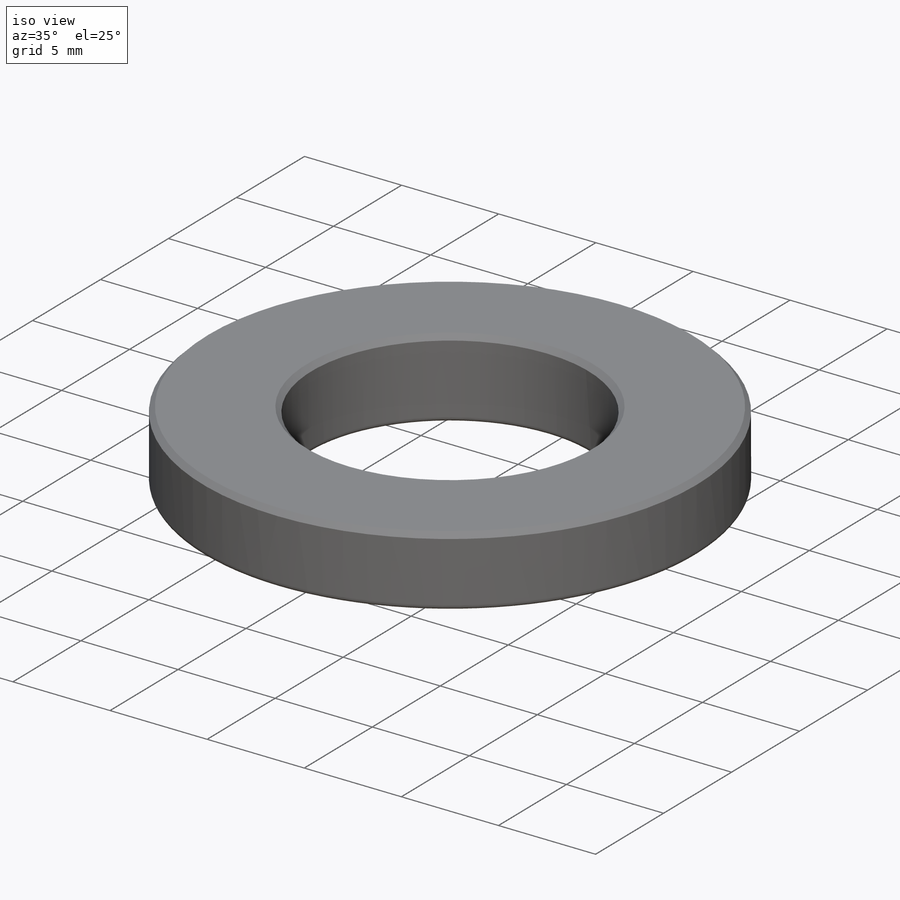
[diagram: iso view]
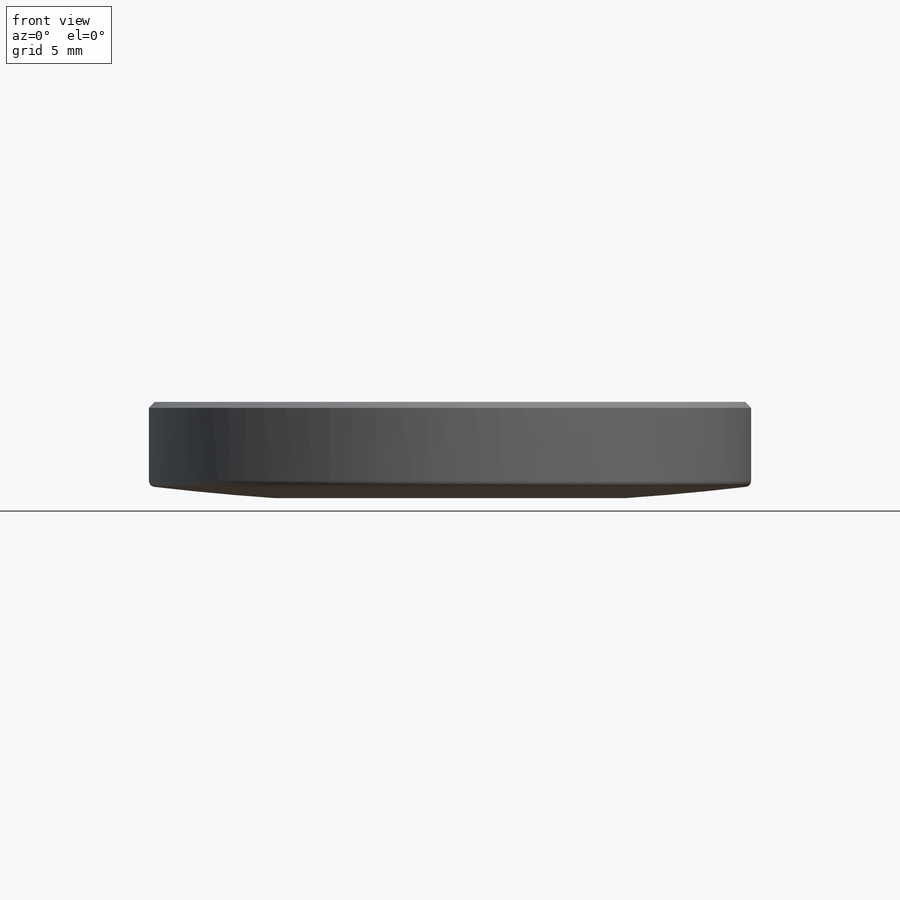
[diagram: front view]
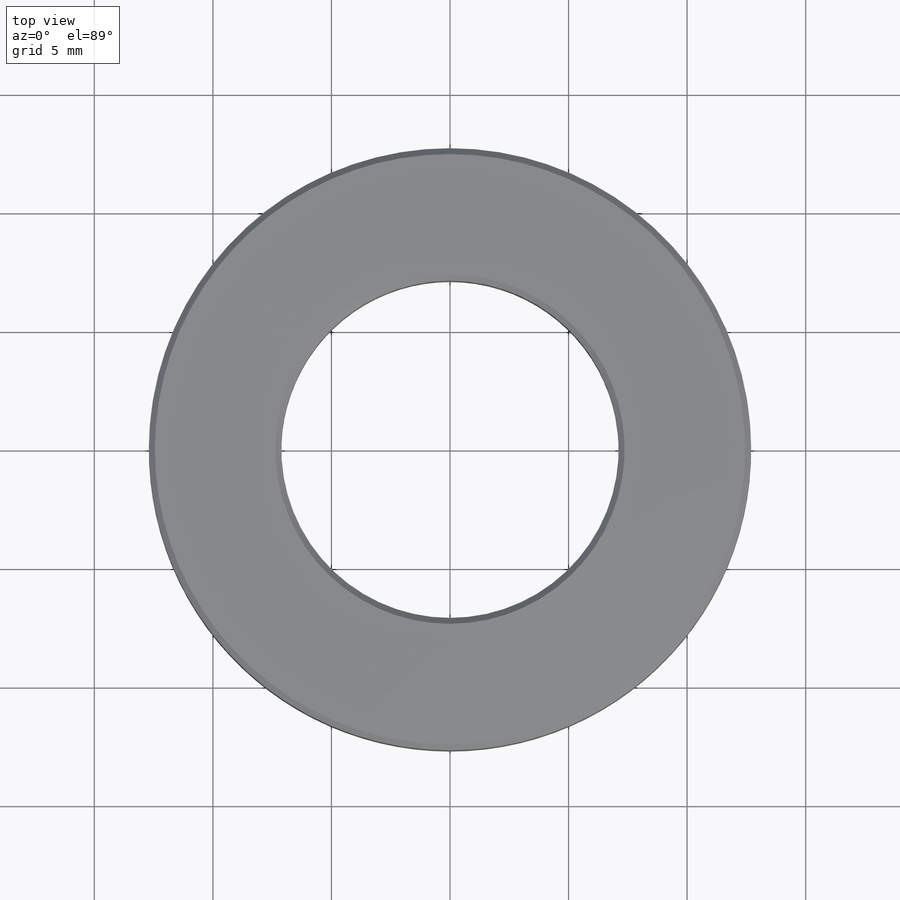
[diagram: top view]
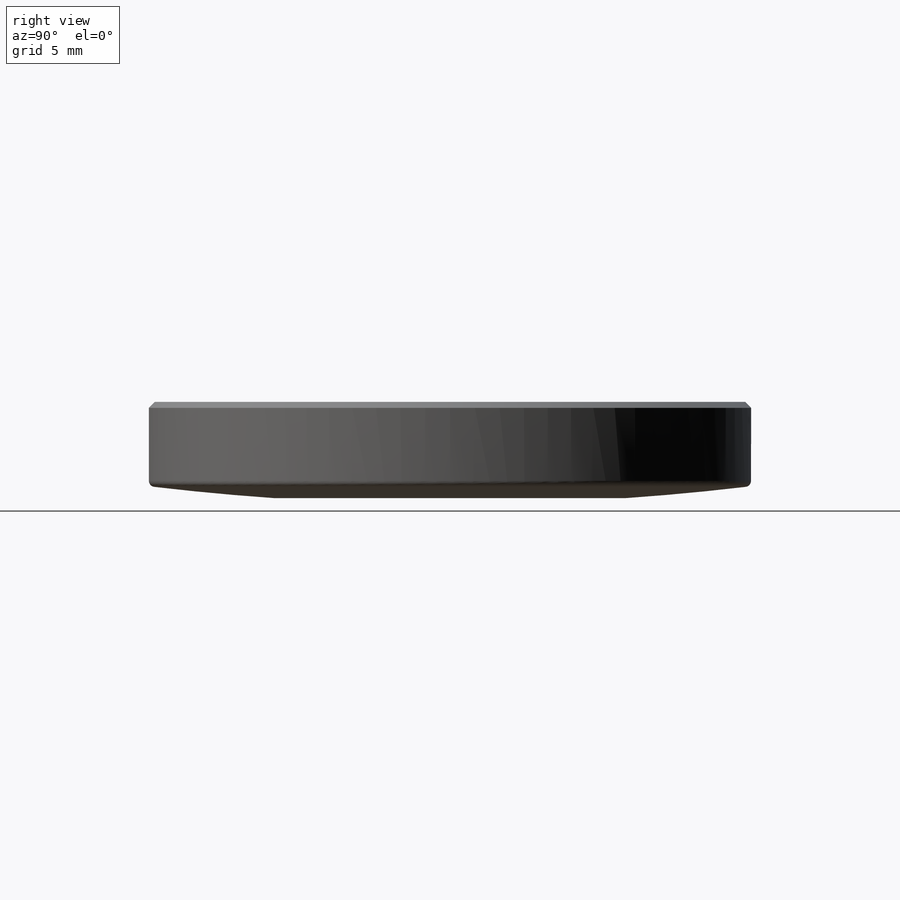
[diagram: right view]
SOLIDWORKS PART (.sldprt)
format: sldprt  version: not decoded by parser v0  size: 247,808 bytes
history: native  units: mm
features: sketch x2, material x1, revolve x1, chamfer x1, fillet x1 + 1 further entry (+13 scaffold rows collapsed)
feature tree (20):
  scaffold x13  (default folders/planes/origin — collapsed)
  material  "304 SSTL"
  "Origin"  ID=-1
  sketch  "Sketch1"  dims[c1.D1=213.36mm c1.D5=76.2mm c2.D1=~12.243987mm c2.D2=6.858mm c2.D3=12.7mm c2.D4=3.81mm]
  sketch  "Sketch2"  dims[c1.D2=106.68mm c1.D1=3.429mm c2.D2=~99.265412mm c2.D1=4.318mm c3.D2=5.588mm]
  revolve  "Convex Revolve1"  Angle=360deg
  chamfer  "Chamfer1"  Distance=0.254mm Angle=45deg
  fillet  "Fillet4"  Radius=0.254mm
decode coverage: 5 of 5 modeling features carry decoded parameters; 1 rows unclassified (native names shown)
note: ~ marks probable driven/reference dimensions
note: suppression state not decoded; provenance and decode notes live in map.json
